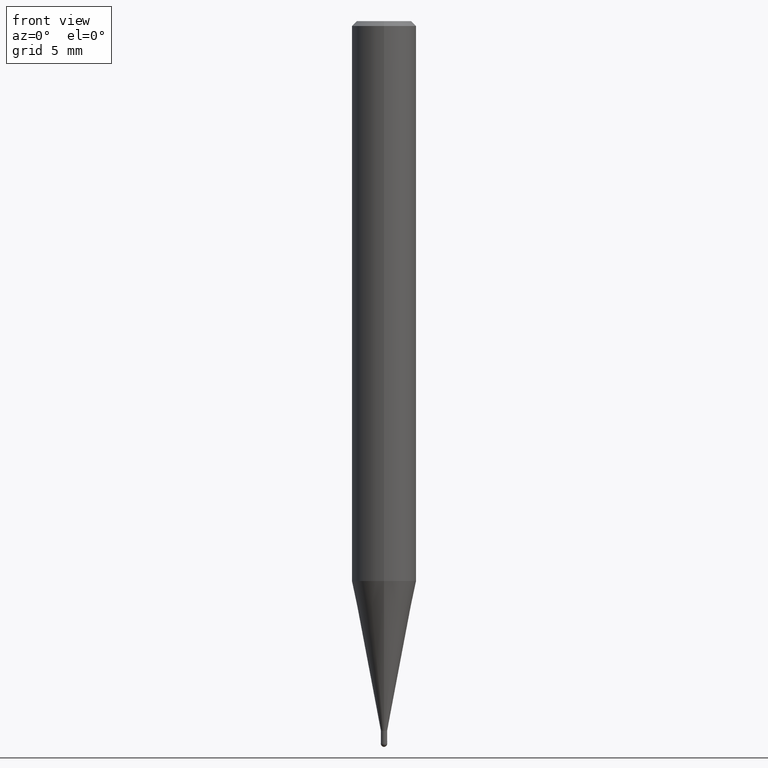
[diagram: clean part render]
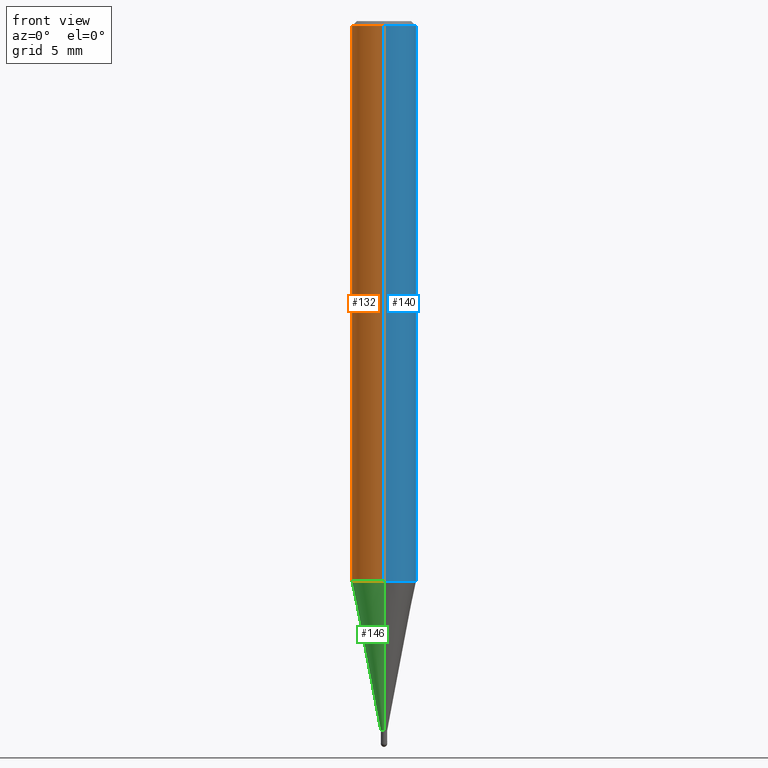
[diagram: same view with three faces highlighted in distinct colors, each labeled with its STEP entity id]
A machine part, front view with three faces highlighted in distinct colors.
Their STEP definitions:

[orange] entity #132 — the highlighted cylindrical surface (edge-blend (fillet) strip) has radius 2 mm, axis along (-0, -0, 1).
#98=VERTEX_POINT('',#239);
#108=VERTEX_POINT('',#250);
#132=ADVANCED_FACE('',(#276),#277,.T.);
#136=EDGE_CURVE('',#98,#188,#281,.T.);
#144=VERTEX_POINT('',#290);
#160=EDGE_CURVE('',#108,#144,#309,.T.);
#184=EDGE_CURVE('',#108,#188,#337,.T.);
#188=VERTEX_POINT('',#342);
#200=EDGE_CURVE('',#144,#98,#356,.T.);
#239=CARTESIAN_POINT('',(0.0,2.0,-0.299999999999997));
#250=CARTESIAN_POINT('',(2.44921270764475E-016,-2.0,-34.714));
#276=FACE_OUTER_BOUND('',#436,.T.);
#277=CYLINDRICAL_SURFACE('',#437,2.0);
#281=LINE('',#442,#443);
#290=CARTESIAN_POINT('',(2.44921270764475E-016,-2.0,-0.299999999999997));
#309=LINE('',#476,#477);
#337=CIRCLE('',#515,2.0);
#342=CARTESIAN_POINT('',(0.0,2.0,-34.714));
#356=CIRCLE('',#535,2.0);
#436=EDGE_LOOP('',(#606,#607,#608,#609));
#437=AXIS2_PLACEMENT_3D('',#610,#611,#612);
#442=CARTESIAN_POINT('',(-2.44921270764475E-016,2.0,-17.507));
#443=VECTOR('',#613,1.0);
#476=CARTESIAN_POINT('',(2.44921270764475E-016,-2.0,-17.507));
#477=VECTOR('',#649,1.0);
#515=AXIS2_PLACEMENT_3D('',#692,#693,#694);
#535=AXIS2_PLACEMENT_3D('',#721,#722,#723);
#606=ORIENTED_EDGE('',*,*,#136,.T.);
#607=ORIENTED_EDGE('',*,*,#184,.F.);
#608=ORIENTED_EDGE('',*,*,#160,.T.);
#609=ORIENTED_EDGE('',*,*,#200,.T.);
#610=CARTESIAN_POINT('',(0.0,0.0,-17.507));
#611=DIRECTION('',(-0.0,-0.0,1.0));
#612=DIRECTION('',(0.0,1.0,0.0));
#613=DIRECTION('',(0.0,0.0,-1.0));
#649=DIRECTION('',(-0.0,-0.0,1.0));
#692=CARTESIAN_POINT('',(0.0,0.0,-34.714));
#693=DIRECTION('',(0.0,0.0,-1.0));
#694=DIRECTION('',(0.0,1.0,0.0));
#721=CARTESIAN_POINT('',(0.0,0.0,-0.299999999999997));
#722=DIRECTION('',(0.0,0.0,-1.0));
#723=DIRECTION('',(0.0,1.0,0.0));

[blue] entity #140 — the highlighted cylindrical surface (edge-blend (fillet) strip) has radius 2 mm, axis along (-0, -0, 1).
#98=VERTEX_POINT('',#239);
#108=VERTEX_POINT('',#250);
#130=EDGE_CURVE('',#98,#144,#274,.T.);
#136=EDGE_CURVE('',#98,#188,#281,.T.);
#140=ADVANCED_FACE('',(#285),#286,.T.);
#144=VERTEX_POINT('',#290);
#160=EDGE_CURVE('',#108,#144,#309,.T.);
#188=VERTEX_POINT('',#342);
#208=EDGE_CURVE('',#188,#108,#364,.T.);
#239=CARTESIAN_POINT('',(0.0,2.0,-0.299999999999997));
#250=CARTESIAN_POINT('',(2.44921270764475E-016,-2.0,-34.714));
#274=CIRCLE('',#434,2.0);
#281=LINE('',#442,#443);
#285=FACE_OUTER_BOUND('',#448,.T.);
#286=CYLINDRICAL_SURFACE('',#449,2.0);
#290=CARTESIAN_POINT('',(2.44921270764475E-016,-2.0,-0.299999999999997));
#309=LINE('',#476,#477);
#342=CARTESIAN_POINT('',(0.0,2.0,-34.714));
#364=CIRCLE('',#549,2.0);
#434=AXIS2_PLACEMENT_3D('',#602,#603,#604);
#442=CARTESIAN_POINT('',(-2.44921270764475E-016,2.0,-17.507));
#443=VECTOR('',#613,1.0);
#448=EDGE_LOOP('',(#618,#619,#620,#621));
#449=AXIS2_PLACEMENT_3D('',#622,#623,#624);
#476=CARTESIAN_POINT('',(2.44921270764475E-016,-2.0,-17.507));
#477=VECTOR('',#649,1.0);
#549=AXIS2_PLACEMENT_3D('',#729,#730,#731);
#602=CARTESIAN_POINT('',(0.0,0.0,-0.299999999999997));
#603=DIRECTION('',(0.0,0.0,-1.0));
#604=DIRECTION('',(0.0,1.0,0.0));
#613=DIRECTION('',(0.0,0.0,-1.0));
#618=ORIENTED_EDGE('',*,*,#136,.F.);
#619=ORIENTED_EDGE('',*,*,#130,.T.);
#620=ORIENTED_EDGE('',*,*,#160,.F.);
#621=ORIENTED_EDGE('',*,*,#208,.F.);
#622=CARTESIAN_POINT('',(0.0,0.0,-17.507));
#623=DIRECTION('',(-0.0,-0.0,1.0));
#624=DIRECTION('',(0.0,1.0,0.0));
#649=DIRECTION('',(-0.0,-0.0,1.0));
#729=CARTESIAN_POINT('',(0.0,0.0,-34.714));
#730=DIRECTION('',(0.0,0.0,-1.0));
#731=DIRECTION('',(0.0,1.0,0.0));

[green] entity #146 — the highlighted conical surface has half-angle 11 deg.
#114=VERTEX_POINT('',#256);
#120=EDGE_CURVE('',#192,#114,#262,.T.);
#126=EDGE_CURVE('',#114,#142,#270,.T.);
#128=EDGE_CURVE('',#134,#142,#272,.T.);
#134=VERTEX_POINT('',#279);
#142=VERTEX_POINT('',#288);
#146=ADVANCED_FACE('',(#292),#293,.T.);
#166=EDGE_CURVE('',#134,#192,#315,.T.);
#192=VERTEX_POINT('',#347);
#256=CARTESIAN_POINT('',(0.0,1.99995,-34.714));
#262=CIRCLE('',#418,1.99995);
#270=LINE('',#427,#428);
#272=CIRCLE('',#431,0.19495);
#279=CARTESIAN_POINT('',(2.38737008677672E-017,-0.19495,-44.0));
#288=CARTESIAN_POINT('',(0.0,0.19495,-44.0));
#292=FACE_OUTER_BOUND('',#455,.T.);
#293=CONICAL_SURFACE('',#456,1.09745,0.191984604054908);
#315=LINE('',#485,#486);
#347=CARTESIAN_POINT('',(2.44915147732706E-016,-1.99995,-34.714));
#418=AXIS2_PLACEMENT_3D('',#579,#580,#581);
#427=CARTESIAN_POINT('',(-1.34394424300237E-016,1.09745,-39.357));
#428=VECTOR('',#598,1.0);
#431=AXIS2_PLACEMENT_3D('',#599,#600,#601);
#455=EDGE_LOOP('',(#626,#627,#628,#629));
#456=AXIS2_PLACEMENT_3D('',#630,#631,#632);
#485=CARTESIAN_POINT('',(1.34394424300237E-016,-1.09745,-39.357));
#486=VECTOR('',#653,1.0);
#579=CARTESIAN_POINT('',(0.0,0.0,-34.714));
#580=DIRECTION('',(0.0,0.0,-1.0));
#581=DIRECTION('',(0.0,1.0,0.0));
#598=DIRECTION('',(2.33663968307108E-017,-0.190807411359389,-0.981627491348082));
#599=CARTESIAN_POINT('',(0.0,0.0,-44.0));
#600=DIRECTION('',(0.0,0.0,-1.0));
#601=DIRECTION('',(0.0,1.0,0.0));
#626=ORIENTED_EDGE('',*,*,#126,.T.);
#627=ORIENTED_EDGE('',*,*,#128,.F.);
#628=ORIENTED_EDGE('',*,*,#166,.T.);
#629=ORIENTED_EDGE('',*,*,#120,.T.);
#630=CARTESIAN_POINT('',(0.0,0.0,-39.357));
#631=DIRECTION('',(-0.0,-0.0,1.0));
#632=DIRECTION('',(0.0,1.0,0.0));
#653=DIRECTION('',(2.33663968307108E-017,-0.190807411359389,0.981627491348082));